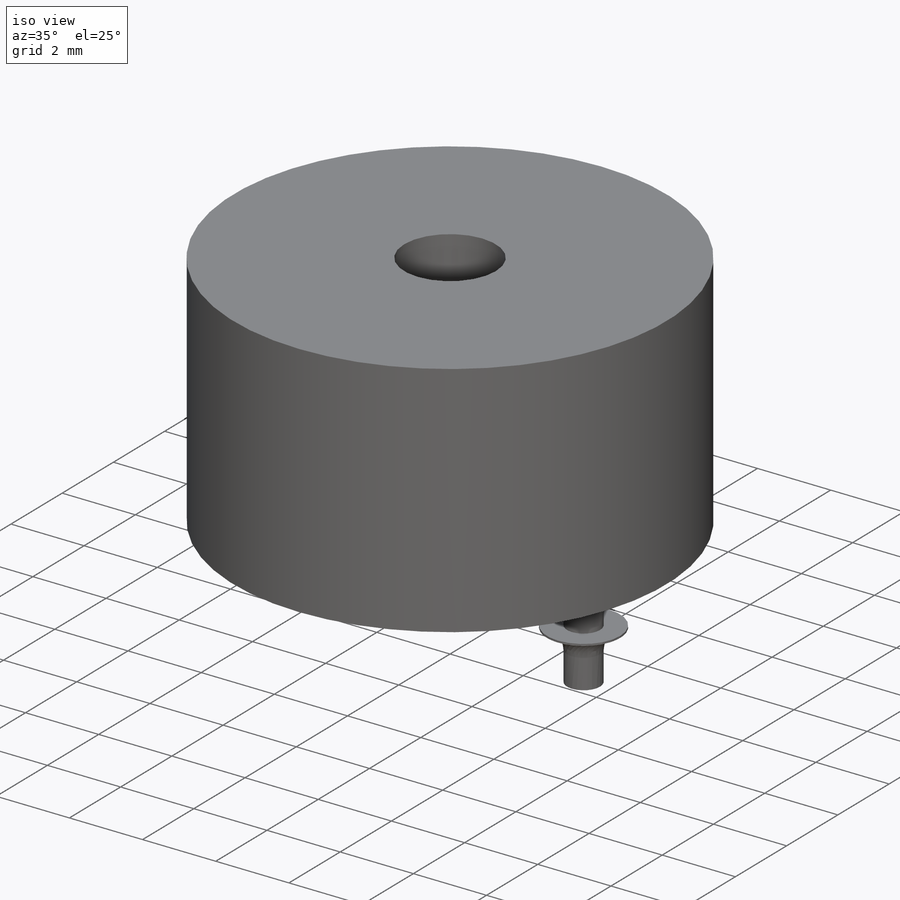
[diagram: iso view]
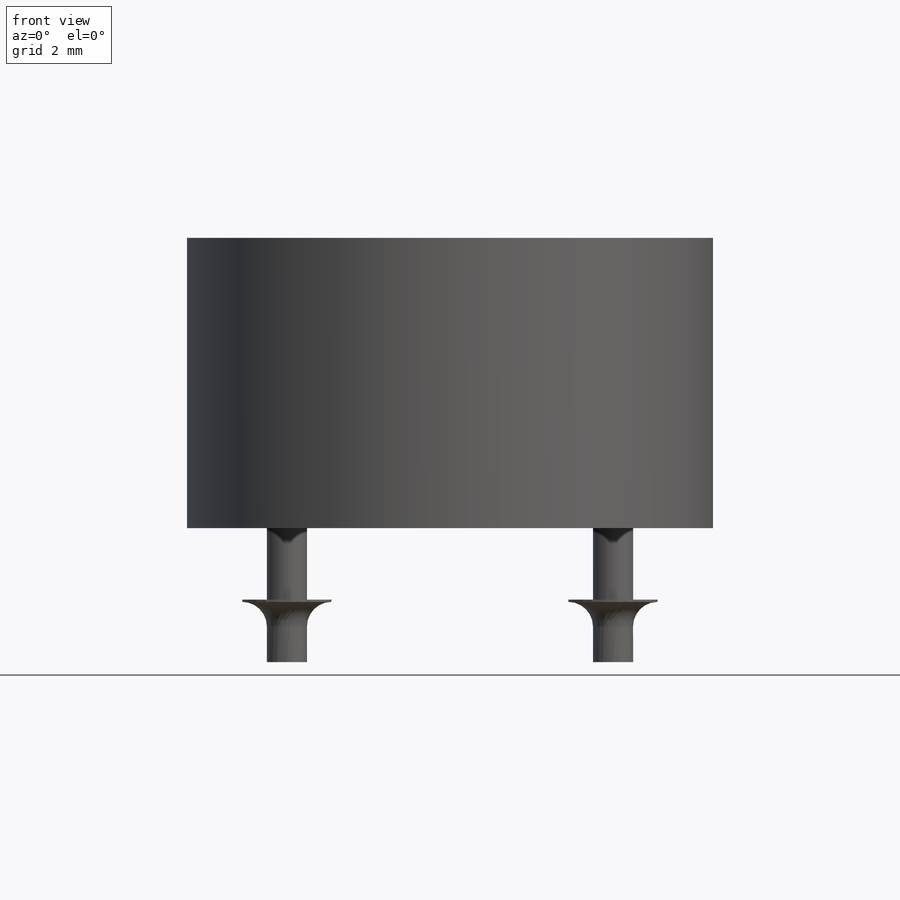
[diagram: front view]
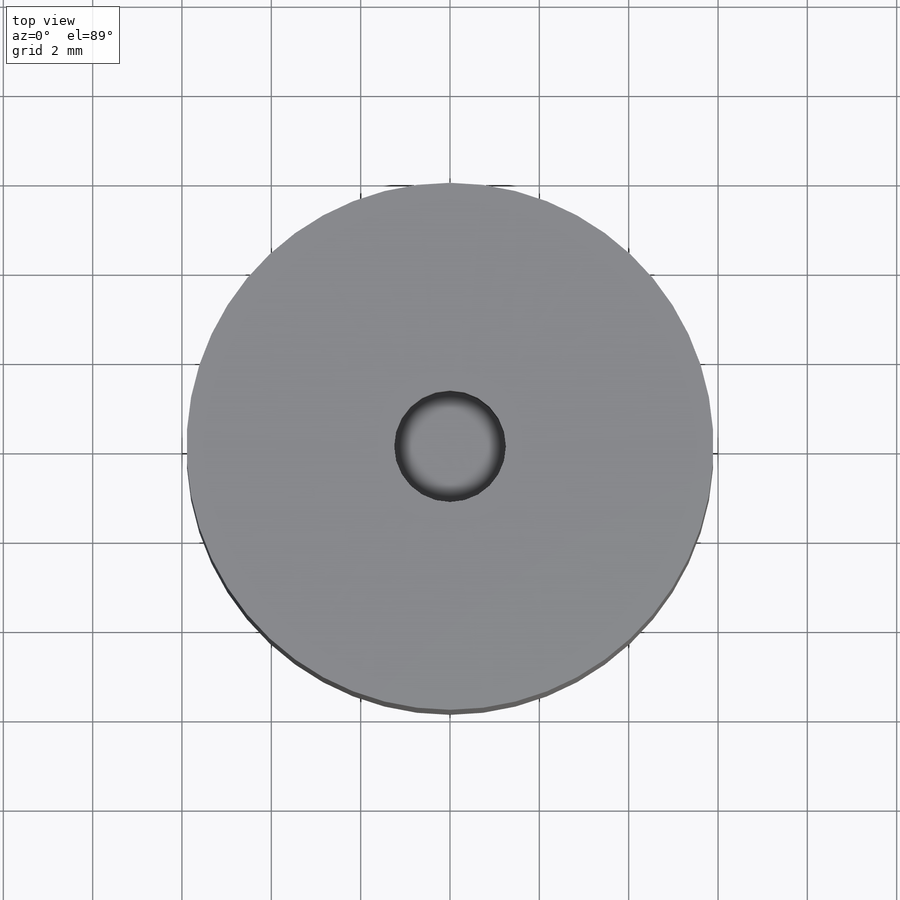
[diagram: top view]
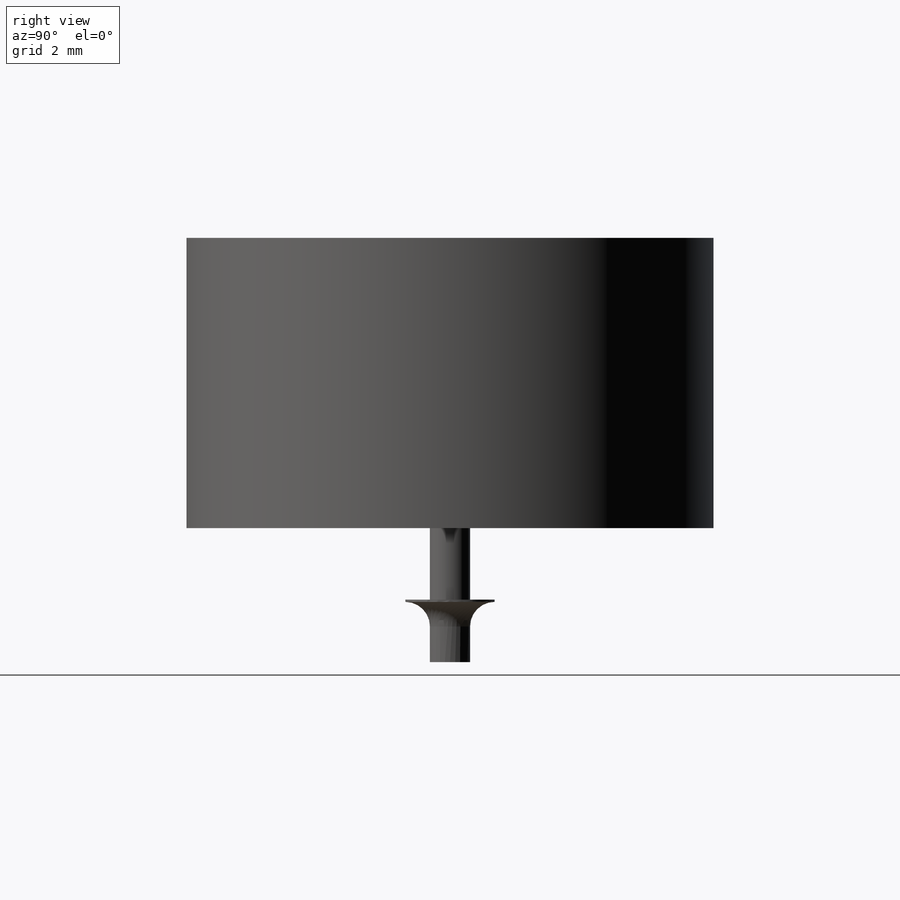
[diagram: right view]
SOLIDWORKS PART (.sldprt)
format: sldprt  version: not decoded by parser v0  size: 169,472 bytes
history: native  units: mm
features: plane x3, sketch x3, material x1, extrude x1, cut_extrude x1, revolve x1, pattern_linear x1 (+8 scaffold rows collapsed)
feature tree (19):
  scaffold x8  (default folders/planes/origin — collapsed)
  material  "Matériau <non spécifié>"
  plane  "Plan de face"
  plane  "Plan de dessus"
  plane  "Plan de droite"
  sketch  "Esquisse1"  dims[D1=11.8mm]
  extrude  "Boss.-Extru.1"  Depth=6.5mm
  sketch  "Esquisse2"  dims[D1=2.5mm]
  cut_extrude  "Enlèv. mat.-Extru.1"  Depth=1.5mm
  sketch  "Esquisse4"  dims[c1.D1=3.65mm c1.D2=0.45mm c1.D3=1.0mm c1.D4=1.6mm c1.D5=~0.313512mm c2.D4=0.05mm c2.D5=1.6mm c2.D6=3.0mm]
  revolve  "Révolution1"  Angle=360deg
  pattern_linear  "Répétition linéaire1"  Count1=2 Count2=1 Spacing1=7.3mm Spacing2=10mm
decode coverage: 7 of 7 modeling features carry decoded parameters
note: ~ marks probable driven/reference dimensions
note: suppression state not decoded; provenance and decode notes live in map.json
